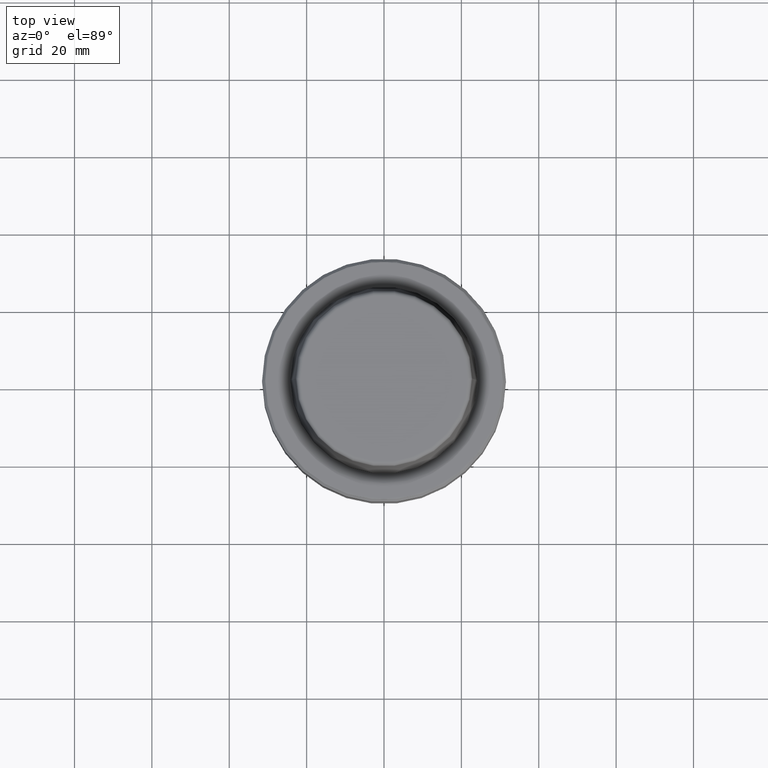
[diagram: clean part render]
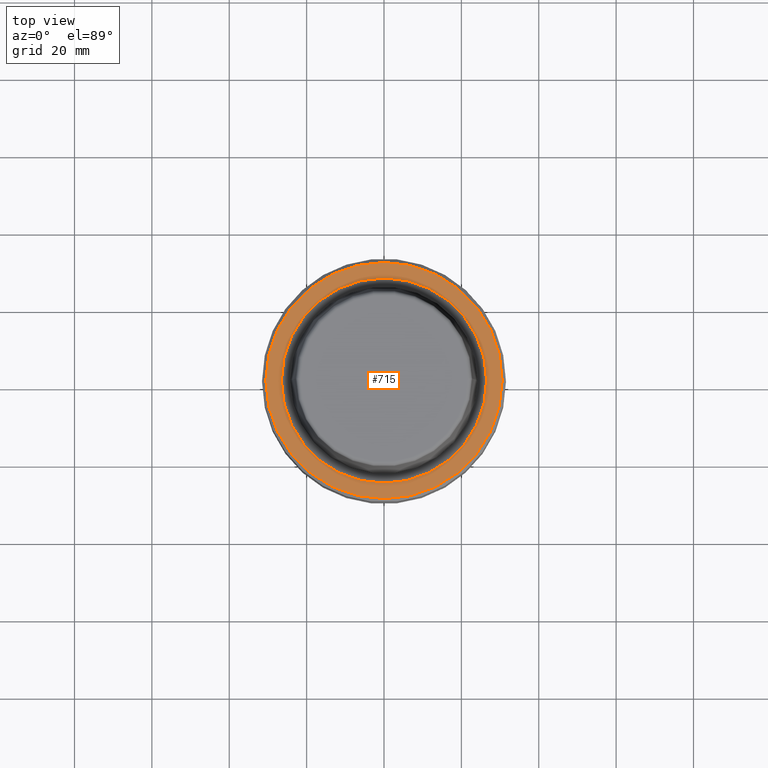
[diagram: same view with one face highlighted and labeled with its STEP entity id]
A machine part, top view. The second image highlights one B-rep face of the part: STEP entity #715.
In plain terms, the highlighted planar face has unit normal (0, 0, -1).
Its self-contained STEP definition (entity closure, byte-faithful):
#3 = CARTESIAN_POINT ( 'NONE',  ( 30.53431457505076100, 0.0000000000000000000, 0.0000000000000000000 ) ) ;
#45 = DIRECTION ( 'NONE',  ( 0.0000000000000000000, 0.0000000000000000000, -1.000000000000000000 ) ) ;
#54 = DIRECTION ( 'NONE',  ( -1.000000000000000000, 0.0000000000000000000, -0.0000000000000000000 ) ) ;
#76 = CIRCLE ( 'NONE', #219, 30.53431457505076100 ) ;
#121 = DIRECTION ( 'NONE',  ( 1.000000000000000000, 0.0000000000000000000, 0.0000000000000000000 ) ) ;
#213 = VERTEX_POINT ( 'NONE', #887 ) ;
#219 = AXIS2_PLACEMENT_3D ( 'NONE', #910, #424, #121 ) ;
#224 = DIRECTION ( 'NONE',  ( -0.0000000000000000000, -0.0000000000000000000, 1.000000000000000000 ) ) ;
#302 = CARTESIAN_POINT ( 'NONE',  ( -26.52499999999999900, 3.248375634738354300E-015, 0.0000000000000000000 ) ) ;
#331 = AXIS2_PLACEMENT_3D ( 'NONE', #1225, #224, #595 ) ;
#340 = FACE_BOUND ( 'NONE', #536, .T. ) ;
#424 = DIRECTION ( 'NONE',  ( -0.0000000000000000000, -0.0000000000000000000, 1.000000000000000000 ) ) ;
#436 = CARTESIAN_POINT ( 'NONE',  ( 0.0000000000000000000, 0.0000000000000000000, 0.0000000000000000000 ) ) ;
#475 = DIRECTION ( 'NONE',  ( 1.000000000000000000, 0.0000000000000000000, 0.0000000000000000000 ) ) ;
#497 = CARTESIAN_POINT ( 'NONE',  ( 0.0000000000000000000, 0.0000000000000000000, 0.0000000000000000000 ) ) ;
#507 = VERTEX_POINT ( 'NONE', #302 ) ;
#508 = CARTESIAN_POINT ( 'NONE',  ( 26.52499999999999900, 0.0000000000000000000, 0.0000000000000000000 ) ) ;
#536 = EDGE_LOOP ( 'NONE', ( #556, #856 ) ) ;
#556 = ORIENTED_EDGE ( 'NONE', *, *, #610, .F. ) ;
#560 = CARTESIAN_POINT ( 'NONE',  ( 0.0000000000000000000, 26.52499999999999900, -1.111307226797642000E-015 ) ) ;
#585 = DIRECTION ( 'NONE',  ( -0.0000000000000000000, -0.0000000000000000000, 1.000000000000000000 ) ) ;
#587 = ORIENTED_EDGE ( 'NONE', *, *, #979, .T. ) ;
#595 = DIRECTION ( 'NONE',  ( 1.000000000000000000, 0.0000000000000000000, 0.0000000000000000000 ) ) ;
#610 = EDGE_CURVE ( 'NONE', #899, #507, #1124, .T. ) ;
#670 = AXIS2_PLACEMENT_3D ( 'NONE', #560, #45, #54 ) ;
#715 = ADVANCED_FACE ( 'NONE', ( #340, #1227 ), #963, .F. ) ;
#742 = DIRECTION ( 'NONE',  ( 1.000000000000000000, 0.0000000000000000000, 0.0000000000000000000 ) ) ;
#767 = ORIENTED_EDGE ( 'NONE', *, *, #1104, .T. ) ;
#819 = AXIS2_PLACEMENT_3D ( 'NONE', #497, #1145, #475 ) ;
#856 = ORIENTED_EDGE ( 'NONE', *, *, #1222, .F. ) ;
#887 = CARTESIAN_POINT ( 'NONE',  ( -30.53431457505076100, 3.756694181974138600E-015, 0.0000000000000000000 ) ) ;
#899 = VERTEX_POINT ( 'NONE', #508 ) ;
#910 = CARTESIAN_POINT ( 'NONE',  ( 0.0000000000000000000, 0.0000000000000000000, 0.0000000000000000000 ) ) ;
#920 = CIRCLE ( 'NONE', #1234, 26.52499999999999900 ) ;
#953 = CIRCLE ( 'NONE', #331, 30.53431457505076100 ) ;
#963 = PLANE ( 'NONE',  #670 ) ;
#979 = EDGE_CURVE ( 'NONE', #213, #1017, #953, .T. ) ;
#1017 = VERTEX_POINT ( 'NONE', #3 ) ;
#1047 = EDGE_LOOP ( 'NONE', ( #767, #587 ) ) ;
#1104 = EDGE_CURVE ( 'NONE', #1017, #213, #76, .T. ) ;
#1124 = CIRCLE ( 'NONE', #819, 26.52499999999999900 ) ;
#1145 = DIRECTION ( 'NONE',  ( -0.0000000000000000000, -0.0000000000000000000, 1.000000000000000000 ) ) ;
#1222 = EDGE_CURVE ( 'NONE', #507, #899, #920, .T. ) ;
#1225 = CARTESIAN_POINT ( 'NONE',  ( 0.0000000000000000000, 0.0000000000000000000, 0.0000000000000000000 ) ) ;
#1227 = FACE_OUTER_BOUND ( 'NONE', #1047, .T. ) ;
#1234 = AXIS2_PLACEMENT_3D ( 'NONE', #436, #585, #742 ) ;